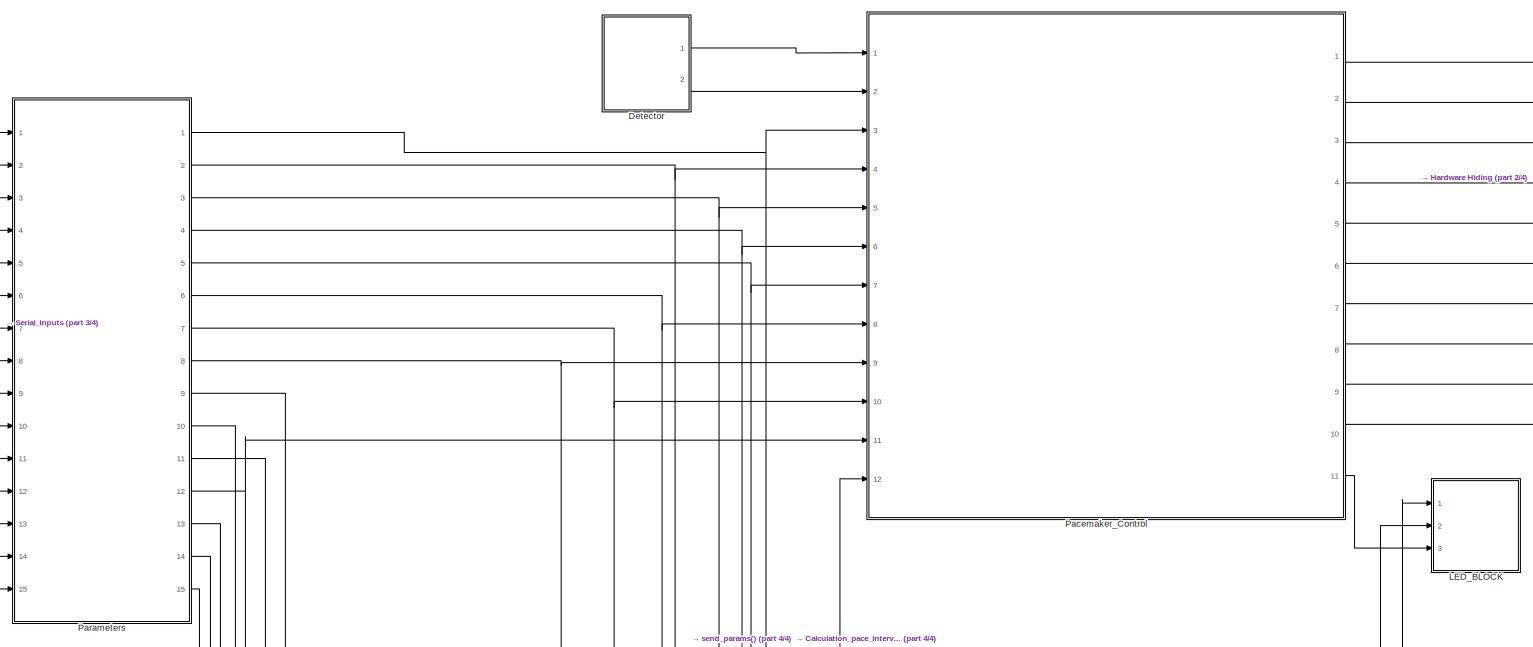
[diagram: root canvas - part 1/4, top center region]
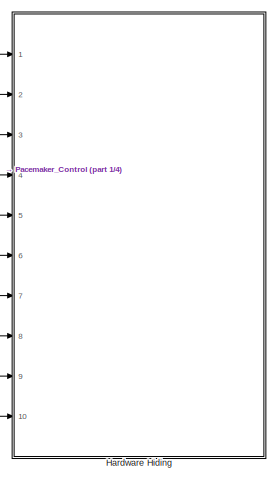
[diagram: root canvas - part 2/4, top right region]
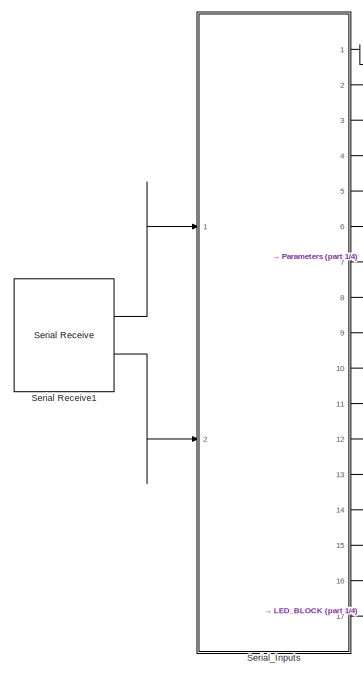
[diagram: root canvas - part 3/4, top left region]
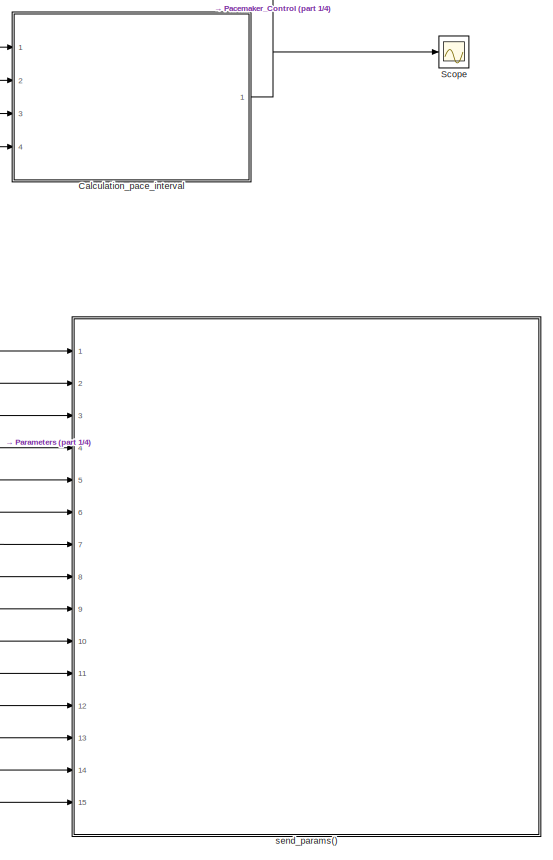
[diagram: root canvas - part 4/4, bottom right region]
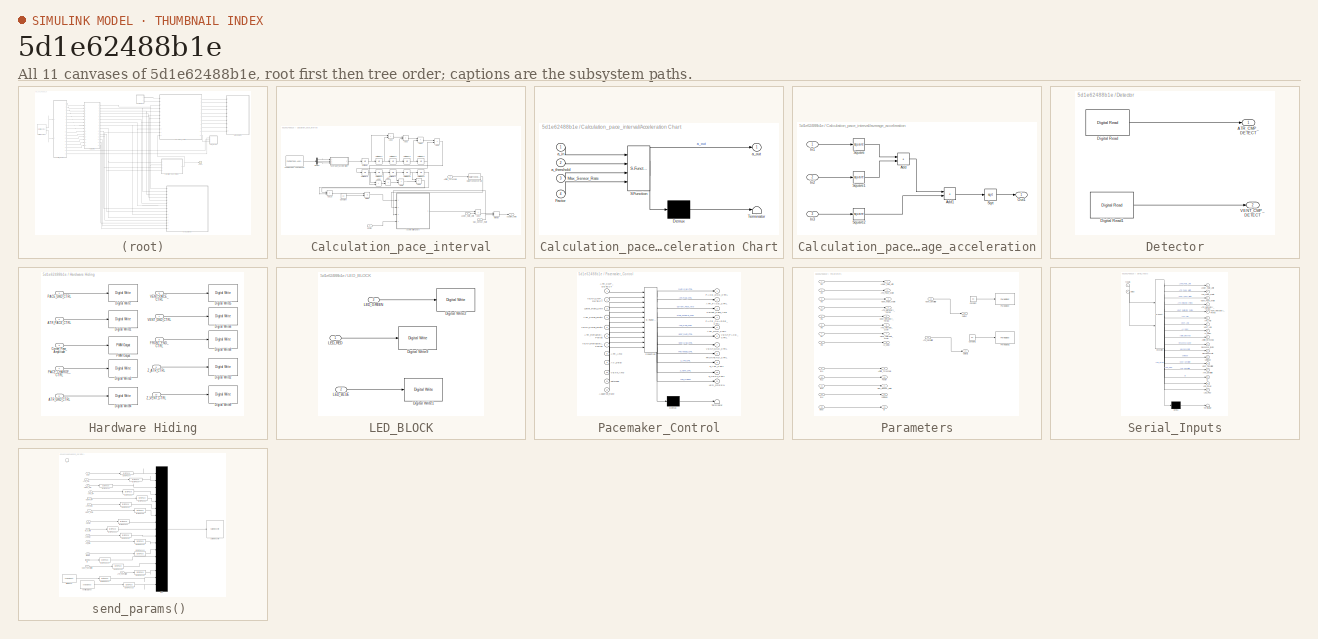
[diagram: thumbnail index - all 11 canvases of the model, root first then tree order]
MODEL slx_5d1e62488b1e
KIND model
CONFIG AbsTol = auto
CONFIG EnableMultiTasking = on
CONFIG FixedStep = 1e-3
CONFIG MaxStep = auto
CONFIG MinStep = auto
CONFIG RelTol = 1e-3
CONFIG SampleTimeConstraint = Unconstrained
CONFIG Solver = FixedStepAuto
CONFIG SolverName = FixedStepAuto
CONFIG StartTime = 0.0
CONFIG StopTime = inf
BLOCK [SubSystem] Calculation_pace_interval
  Ports = [4, 1]
  RequestExecContextInheritance = off
BLOCK [SubSystem] Calculation_pace_interval/Acceleration Chart
  ErrorFcn = Stateflow.Translate.translate
  PermitHierarchicalResolution = ExplicitOnly
  Ports = [4, 1]
  RequestExecContextInheritance = off
  SFBlockType = Chart
  TreatAsAtomicUnit = on
BLOCK [Demux] Calculation_pace_interval/Acceleration Chart/ Demux 
  Outputs = 1
  Ports = [1, 1]
BLOCK [S-Function] Calculation_pace_interval/Acceleration Chart/ SFunction 
  EnableBusSupport = on
  FunctionName = sf_sfun
  PortCounts = [4 2]
  Ports = [4, 2]
  SFcnIsStateOwnerBlock = off
  SFunctionDeploymentMode = off
  Tag = Stateflow S-Function 4
BLOCK [Terminator] Calculation_pace_interval/Acceleration Chart/ Terminator 
BLOCK [Inport] Calculation_pace_interval/Acceleration Chart/Factor
  Port = 4
BLOCK [Inport] Calculation_pace_interval/Acceleration Chart/Max_Sensor_Rate
  Port = 3
BLOCK [Inport] Calculation_pace_interval/Acceleration Chart/a_in
BLOCK [Outport] Calculation_pace_interval/Acceleration Chart/a_out
  VectorParamsAs1DForOutWhenUnconnected = off
BLOCK [Inport] Calculation_pace_interval/Acceleration Chart/a_threshold
  Port = 2
BLOCK [Inport] Calculation_pace_interval/Activity_Threshold
  OutDataTypeStr = uint16
BLOCK [Outport] Calculation_pace_interval/Adaptive_Rate
  OutDataTypeStr = uint16
  VectorParamsAs1DForOutWhenUnconnected = off
BLOCK [Sum] Calculation_pace_interval/Add1
  IconShape = rectangular
  Ports = [2, 1]
BLOCK [Sum] Calculation_pace_interval/Add10
  IconShape = rectangular
  Ports = [2, 1]
BLOCK [Sum] Calculation_pace_interval/Add2
  IconShape = rectangular
  Ports = [2, 1]
BLOCK [Sum] Calculation_pace_interval/Add3
  IconShape = rectangular
  Ports = [2, 1]
BLOCK [Sum] Calculation_pace_interval/Add4
  IconShape = rectangular
  Ports = [2, 1]
BLOCK [Sum] Calculation_pace_interval/Add5
  IconShape = rectangular
  Ports = [2, 1]
BLOCK [Sum] Calculation_pace_interval/Add6
  IconShape = rectangular
  Ports = [2, 1]
BLOCK [Sum] Calculation_pace_interval/Add7
  IconShape = rectangular
  Ports = [2, 1]
BLOCK [Sum] Calculation_pace_interval/Add8
  IconShape = rectangular
  Ports = [2, 1]
BLOCK [Sum] Calculation_pace_interval/Add9
  IconShape = rectangular
  Ports = [2, 1]
BLOCK [Constant] Calculation_pace_interval/Constant
  Value = 10
BLOCK [DataTypeConversion] Calculation_pace_interval/Data Type Conversion
  OutDataTypeStr = double
  RndMeth = Floor
  SaturateOnIntegerOverflow = off
BLOCK [Demux] Calculation_pace_interval/Demux
  Outputs = 3
  Ports = [1, 3]
BLOCK [Product] Calculation_pace_interval/Divide
  Inputs = */
  Ports = [2, 1]
BLOCK [Reference] Calculation_pace_interval/FXOS8700 6-Axes Sensor  REF=frdmk64flib/FXOS8700 6-Axes Sensor
  Ports = [0, 1]
  SourceBlock = frdmk64flib/FXOS8700 6-Axes Sensor
  SourceProductBaseCode = EC_FRDM_K64F
  SourceType = freedomk64f.fxos8700
BLOCK [Inport] Calculation_pace_interval/Factor
  OutDataTypeStr = uint16
  Port = 3
BLOCK [Inport] Calculation_pace_interval/Lower_Rate_Limit
  OutDataTypeStr = uint16
  Port = 2
BLOCK [Inport] Calculation_pace_interval/Max_Sensor_Rate
  OutDataTypeStr = uint16
  Port = 4
BLOCK [MinMax] Calculation_pace_interval/MinMax
  Inputs = 2
  Ports = [2, 1]
BLOCK [UnitDelay] Calculation_pace_interval/Unit Delay
  HasFrameUpgradeWarning = on
  SampleTime = -1
BLOCK [UnitDelay] Calculation_pace_interval/Unit Delay1
  HasFrameUpgradeWarning = on
  SampleTime = -1
BLOCK [UnitDelay] Calculation_pace_interval/Unit Delay2
  HasFrameUpgradeWarning = on
  SampleTime = -1
BLOCK [UnitDelay] Calculation_pace_interval/Unit Delay3
  HasFrameUpgradeWarning = on
  SampleTime = -1
BLOCK [UnitDelay] Calculation_pace_interval/Unit Delay4
  HasFrameUpgradeWarning = on
  SampleTime = -1
BLOCK [UnitDelay] Calculation_pace_interval/Unit Delay5
  HasFrameUpgradeWarning = on
  SampleTime = -1
BLOCK [UnitDelay] Calculation_pace_interval/Unit Delay6
  HasFrameUpgradeWarning = on
  SampleTime = -1
BLOCK [UnitDelay] Calculation_pace_interval/Unit Delay7
  HasFrameUpgradeWarning = on
  SampleTime = -1
BLOCK [UnitDelay] Calculation_pace_interval/Unit Delay8
  HasFrameUpgradeWarning = on
  SampleTime = -1
BLOCK [UnitDelay] Calculation_pace_interval/Unit Delay9
  HasFrameUpgradeWarning = on
  SampleTime = -1
BLOCK [SubSystem] Calculation_pace_interval/average_acceleration
  Ports = [3, 1]
  RequestExecContextInheritance = off
BLOCK [Sum] Calculation_pace_interval/average_acceleration/Add
  IconShape = rectangular
  Ports = [2, 1]
BLOCK [Sum] Calculation_pace_interval/average_acceleration/Add1
  IconShape = rectangular
  Ports = [2, 1]
BLOCK [Inport] Calculation_pace_interval/average_acceleration/In1
BLOCK [Inport] Calculation_pace_interval/average_acceleration/In2
  Port = 2
BLOCK [Inport] Calculation_pace_interval/average_acceleration/In3
  Port = 3
BLOCK [Outport] Calculation_pace_interval/average_acceleration/Out1
BLOCK [Sqrt] Calculation_pace_interval/average_acceleration/Sqrt
BLOCK [Math] Calculation_pace_interval/average_acceleration/Square
  Operator = square
  Ports = [1, 1]
  SignedPower = on
BLOCK [Math] Calculation_pace_interval/average_acceleration/Square1
  Operator = square
  Ports = [1, 1]
  SignedPower = on
BLOCK [Math] Calculation_pace_interval/average_acceleration/Square2
  Operator = square
  Ports = [1, 1]
  SignedPower = on
BLOCK [SubSystem] Detector
  Ports = [0, 2]
  RequestExecContextInheritance = off
BLOCK [Outport] Detector/ATR_CMP_DETECT
  IconDisplay = Signal name
  OutDataTypeStr = boolean
BLOCK [Reference] Detector/Digital Read  REF=frdmk64flib/Digital Read
  Ports = [0, 1]
  SourceBlock = frdmk64flib/Digital Read
  SourceProductBaseCode = EC_FRDM_K64F
  SourceType = freedomk64f.DigitalRead
BLOCK [Reference] Detector/Digital Read1  REF=frdmk64flib/Digital Read
  Ports = [0, 1]
  SourceBlock = frdmk64flib/Digital Read
  SourceProductBaseCode = EC_FRDM_K64F
  SourceType = freedomk64f.DigitalRead
BLOCK [Outport] Detector/VENT_CMP_DETECT
  OutDataTypeStr = boolean
  Port = 2
BLOCK [SubSystem] Hardware Hiding
  Ports = [10]
  RequestExecContextInheritance = off
BLOCK [Inport] Hardware Hiding/ATR_GND_CTRL
  OutDataTypeStr = boolean
  Port = 5
BLOCK [Inport] Hardware Hiding/ATR_PACE_CTRL
  OutDataTypeStr = boolean
  Port = 2
BLOCK [Inport] Hardware Hiding/Current_Pace_Amplitude
  OutDataTypeStr = uint16
  Port = 3
BLOCK [Reference] Hardware Hiding/Digital Write  REF=frdmk64flib/Digital Write
  Ports = [1]
  SourceBlock = frdmk64flib/Digital Write
  SourceProductBaseCode = EC_FRDM_K64F
  SourceType = freedomk64f.DigitalWrite
BLOCK [Reference] Hardware Hiding/Digital Write1  REF=frdmk64flib/Digital Write
  Ports = [1]
  SourceBlock = frdmk64flib/Digital Write
  SourceProductBaseCode = EC_FRDM_K64F
  SourceType = freedomk64f.DigitalWrite
BLOCK [Reference] Hardware Hiding/Digital Write2  REF=frdmk64flib/Digital Write
  Ports = [1]
  SourceBlock = frdmk64flib/Digital Write
  SourceProductBaseCode = EC_FRDM_K64F
  SourceType = freedomk64f.DigitalWrite
BLOCK [Reference] Hardware Hiding/Digital Write3  REF=frdmk64flib/Digital Write
  Ports = [1]
  SourceBlock = frdmk64flib/Digital Write
  SourceProductBaseCode = EC_FRDM_K64F
  SourceType = freedomk64f.DigitalWrite
BLOCK [Reference] Hardware Hiding/Digital Write4  REF=frdmk64flib/Digital Write
  Ports = [1]
  SourceBlock = frdmk64flib/Digital Write
  SourceProductBaseCode = EC_FRDM_K64F
  SourceType = freedomk64f.DigitalWrite
BLOCK [Reference] Hardware Hiding/Digital Write5  REF=frdmk64flib/Digital Write
  Ports = [1]
  SourceBlock = frdmk64flib/Digital Write
  SourceProductBaseCode = EC_FRDM_K64F
  SourceType = freedomk64f.DigitalWrite
BLOCK [Reference] Hardware Hiding/Digital Write6  REF=frdmk64flib/Digital Write
  Ports = [1]
  SourceBlock = frdmk64flib/Digital Write
  SourceProductBaseCode = EC_FRDM_K64F
  SourceType = freedomk64f.DigitalWrite
BLOCK [Reference] Hardware Hiding/Digital Write8  REF=frdmk64flib/Digital Write
  Ports = [1]
  SourceBlock = frdmk64flib/Digital Write
  SourceProductBaseCode = EC_FRDM_K64F
  SourceType = freedomk64f.DigitalWrite
BLOCK [Reference] Hardware Hiding/Digital Write9  REF=frdmk64flib/Digital Write
  Ports = [1]
  SourceBlock = frdmk64flib/Digital Write
  SourceProductBaseCode = EC_FRDM_K64F
  SourceType = freedomk64f.DigitalWrite
BLOCK [Inport] Hardware Hiding/FRONT_END_CTRL
  OutDataTypeStr = boolean
  Port = 8
BLOCK [Inport] Hardware Hiding/PACE_CHARGE_CTRL
  OutDataTypeStr = boolean
  Port = 4
BLOCK [Inport] Hardware Hiding/PACE_GND_CTRL
  OutDataTypeStr = boolean
BLOCK [Reference] Hardware Hiding/PWM Output  REF=frdmk64flib/PWM Output
  Ports = [1]
  SourceBlock = frdmk64flib/PWM Output
  SourceProductBaseCode = EC_FRDM_K64F
  SourceType = freedomk64f.PWMOutput
BLOCK [Inport] Hardware Hiding/VENT_GND_CTRL
  OutDataTypeStr = boolean
  Port = 7
BLOCK [Inport] Hardware Hiding/VENT_PACE_CTRL
  OutDataTypeStr = boolean
  Port = 6
BLOCK [Inport] Hardware Hiding/Z_ATR_CTRL
  OutDataTypeStr = boolean
  Port = 9
BLOCK [Inport] Hardware Hiding/Z_VENT_CTRL
  OutDataTypeStr = boolean
  Port = 10
BLOCK [SubSystem] LED_BLOCK
  Ports = [3]
  RequestExecContextInheritance = off
BLOCK [Reference] LED_BLOCK/Digital Write1  REF=frdmk64flib/Digital Write
  Ports = [1]
  SourceBlock = frdmk64flib/Digital Write
  SourceProductBaseCode = EC_FRDM_K64F
  SourceType = freedomk64f.DigitalWrite
BLOCK [Reference] LED_BLOCK/Digital Write2  REF=frdmk64flib/Digital Write
  Ports = [1]
  SourceBlock = frdmk64flib/Digital Write
  SourceProductBaseCode = EC_FRDM_K64F
  SourceType = freedomk64f.DigitalWrite
BLOCK [Reference] LED_BLOCK/Digital Write9  REF=frdmk64flib/Digital Write
  Ports = [1]
  SourceBlock = frdmk64flib/Digital Write
  SourceProductBaseCode = EC_FRDM_K64F
  SourceType = freedomk64f.DigitalWrite
BLOCK [Inport] LED_BLOCK/LED_BLUE
  OutDataTypeStr = boolean
  Port = 2
BLOCK [Inport] LED_BLOCK/LED_GREEN
  OutDataTypeStr = boolean
  Port = 3
BLOCK [Inport] LED_BLOCK/LED_RED
  OutDataTypeStr = boolean
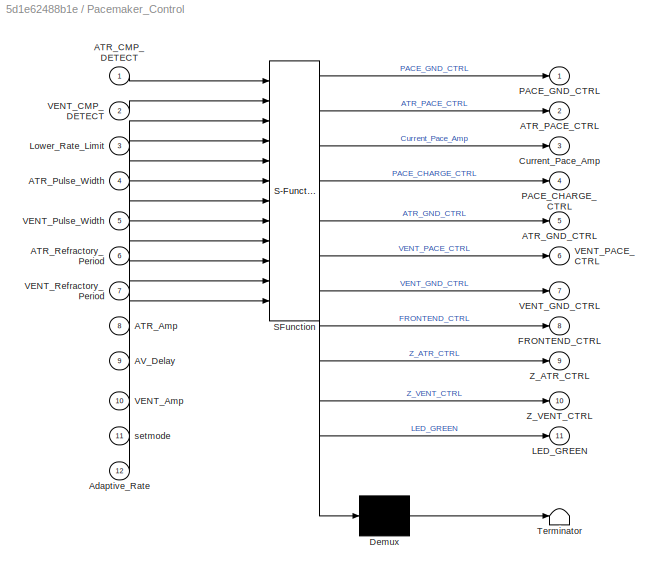
BLOCK [SubSystem] Pacemaker_Control
  ErrorFcn = Stateflow.Translate.translate
  PermitHierarchicalResolution = ExplicitOnly
  Ports = [12, 11]
  RequestExecContextInheritance = off
  SFBlockType = Chart
  ShowPortLabels = FromPortBlockName
  TreatAsAtomicUnit = on
BLOCK [Demux] Pacemaker_Control/ Demux 
  Outputs = 1
  Ports = [1, 1]
BLOCK [S-Function] Pacemaker_Control/ SFunction 
  EnableBusSupport = on
  FunctionName = sf_sfun
  PortCounts = [12 12]
  Ports = [12, 12]
  SFcnIsStateOwnerBlock = off
  SFunctionDeploymentMode = off
  Tag = Stateflow S-Function 5
BLOCK [Terminator] Pacemaker_Control/ Terminator 
BLOCK [Inport] Pacemaker_Control/ATR_Amp
  Port = 8
BLOCK [Inport] Pacemaker_Control/ATR_CMP_DETECT
BLOCK [Outport] Pacemaker_Control/ATR_GND_CTRL
  Port = 5
  VectorParamsAs1DForOutWhenUnconnected = off
BLOCK [Outport] Pacemaker_Control/ATR_PACE_CTRL
  Port = 2
  VectorParamsAs1DForOutWhenUnconnected = off
BLOCK [Inport] Pacemaker_Control/ATR_Pulse_Width
  Port = 4
BLOCK [Inport] Pacemaker_Control/ATR_Refractory_Period
  Port = 6
BLOCK [Inport] Pacemaker_Control/AV_Delay
  Port = 9
BLOCK [Inport] Pacemaker_Control/Adaptive_Rate
  Port = 12
BLOCK [Outport] Pacemaker_Control/Current_Pace_Amp
  Port = 3
BLOCK [Outport] Pacemaker_Control/FRONTEND_CTRL
  Port = 8
BLOCK [Outport] Pacemaker_Control/LED_GREEN
  Port = 11
BLOCK [Inport] Pacemaker_Control/Lower_Rate_Limit
  Port = 3
BLOCK [Outport] Pacemaker_Control/PACE_CHARGE_CTRL
  Port = 4
  VectorParamsAs1DForOutWhenUnconnected = off
BLOCK [Outport] Pacemaker_Control/PACE_GND_CTRL
  VectorParamsAs1DForOutWhenUnconnected = off
BLOCK [Inport] Pacemaker_Control/VENT_Amp
  Port = 10
BLOCK [Inport] Pacemaker_Control/VENT_CMP_DETECT
  Port = 2
BLOCK [Outport] Pacemaker_Control/VENT_GND_CTRL
  Port = 7
  VectorParamsAs1DForOutWhenUnconnected = off
BLOCK [Outport] Pacemaker_Control/VENT_PACE_CTRL
  Port = 6
  VectorParamsAs1DForOutWhenUnconnected = off
BLOCK [Inport] Pacemaker_Control/VENT_Pulse_Width
  Port = 5
BLOCK [Inport] Pacemaker_Control/VENT_Refractory_Period
  Port = 7
BLOCK [Outport] Pacemaker_Control/Z_ATR_CTRL
  Port = 9
BLOCK [Outport] Pacemaker_Control/Z_VENT_CTRL
  Port = 10
BLOCK [Inport] Pacemaker_Control/setmode
  Port = 11
BLOCK [SubSystem] Parameters
  Ports = [15, 15]
  RequestExecContextInheritance = off
BLOCK [Outport] Parameters/ATR_Amp(Duty_Cycle)
  IconDisplay = Port number and signal name
  OutDataTypeStr = uint16
  Port = 6
BLOCK [Outport] Parameters/ATR_Pulse_Width
  IconDisplay = Port number and signal name
  OutDataTypeStr = uint16
  Port = 2
BLOCK [Outport] Parameters/ATR_Refractory_Period
  IconDisplay = Port number and signal name
  OutDataTypeStr = uint16
  Port = 4
BLOCK [Inport] Parameters/ATR_Sensitivity
  Port = 14
BLOCK [Outport] Parameters/AV_Delay
  IconDisplay = Port number and signal name
  OutDataTypeStr = uint16
  Port = 8
BLOCK [Outport] Parameters/Activity_Threshold
  OutDataTypeStr = uint16
  Port = 9
BLOCK [Constant] Parameters/Constant
  Value = 83
BLOCK [Constant] Parameters/Constant1
  Value = 83
BLOCK [Outport] Parameters/Factor
  OutDataTypeStr = uint16
  Port = 10
BLOCK [Outport] Parameters/ID
  Port = 15
BLOCK [Inport] Parameters/In1
BLOCK [Inport] Parameters/In11
  Port = 9
BLOCK [Inport] Parameters/In12
  Port = 10
BLOCK [Inport] Parameters/In13
  Port = 11
BLOCK [Inport] Parameters/In14
  Port = 12
BLOCK [Inport] Parameters/In2
  Port = 2
BLOCK [Inport] Parameters/In3
  Port = 3
BLOCK [Inport] Parameters/In4
  Port = 4
BLOCK [Inport] Parameters/In5
  Port = 5
BLOCK [Inport] Parameters/In6
  Port = 6
BLOCK [Inport] Parameters/In7
  Port = 7
BLOCK [Inport] Parameters/In8
  Port = 8
BLOCK [Inport] Parameters/Input
  Port = 15
BLOCK [Outport] Parameters/Lower_Rate_Limit 
  IconDisplay = Signal name
  OutDataTypeStr = uint16
BLOCK [Outport] Parameters/Max_Sensor_Rate
  OutDataTypeStr = uint16
  Port = 11
BLOCK [Outport] Parameters/Output
  Port = 13
BLOCK [Outport] Parameters/Output1
  Port = 14
BLOCK [Reference] Parameters/PWM Output  REF=frdmk64flib/PWM Output
  Ports = [1]
  SourceBlock = frdmk64flib/PWM Output
  SourceProductBaseCode = EC_FRDM_K64F
  SourceType = freedomk64f.PWMOutput
BLOCK [Reference] Parameters/PWM Output1  REF=frdmk64flib/PWM Output
  Ports = [1]
  SourceBlock = frdmk64flib/PWM Output
  SourceProductBaseCode = EC_FRDM_K64F
  SourceType = freedomk64f.PWMOutput
BLOCK [Outport] Parameters/VENT_Amp(Duty_Cycle)
  IconDisplay = Port number and signal name
  OutDataTypeStr = uint16
  Port = 7
BLOCK [Outport] Parameters/VENT_Pulse_Width
  IconDisplay = Port number and signal name
  OutDataTypeStr = uint16
  Port = 3
BLOCK [Outport] Parameters/VENT_Refractory_Period
  IconDisplay = Port number and signal name
  OutDataTypeStr = uint16
  Port = 5
BLOCK [Inport] Parameters/VENT_Sensitivity
  Port = 13
BLOCK [Outport] Parameters/setmode 
  Port = 12
  VectorParamsAs1DForOutWhenUnconnected = off
BLOCK [Scope] Scope
  Floating = off
  NumInputPorts = 1
  Ports = [1]
  ScopeSpecificationString = Simulink.scopes.TimeScopeBlockCfg('CurrentConfiguration', extmgr.ConfigurationSet(extmgr.Configuration('Core','General UI',true),extmgr.Configuration('Core','Source UI',true),extmgr.Configuration('Sources','WiredSimulink',true),extmgr.Configuration('Visuals','Time Domain',true,'SerializedDisplays',{struct('MinYLimReal','-100','MaxYLimReal','100','YLabelReal','','MinYLimMag','0','MaxYLimMag','10','...<+1326ch>
BLOCK [Reference] Serial Receive1  REF=frdmk64flib/Serial Receive
  Ports = [0, 2]
  SourceBlock = frdmk64flib/Serial Receive
  SourceProductBaseCode = EC_FRDM_K64F
  SourceType = freedomk64f.SCIRead
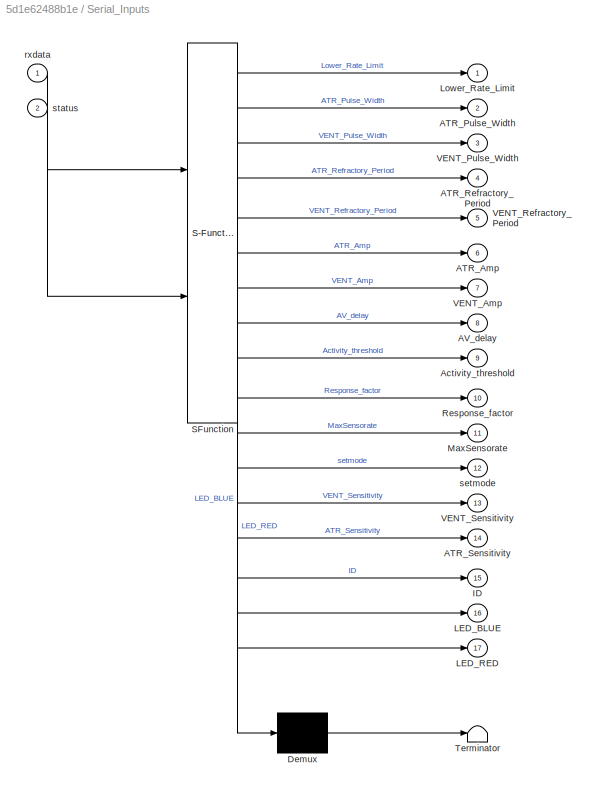
BLOCK [SubSystem] Serial_Inputs
  ErrorFcn = Stateflow.Translate.translate
  PermitHierarchicalResolution = ExplicitOnly
  Ports = [2, 17]
  RequestExecContextInheritance = off
  SFBlockType = Chart
  TreatAsAtomicUnit = on
BLOCK [Demux] Serial_Inputs/ Demux 
  Outputs = 1
  Ports = [1, 1]
BLOCK [S-Function] Serial_Inputs/ SFunction 
  EnableBusSupport = on
  FunctionName = sf_sfun
  PortCounts = [2 18]
  Ports = [2, 18]
  SFcnIsStateOwnerBlock = off
  SFunctionDeploymentMode = off
  Tag = Stateflow S-Function 6
BLOCK [Terminator] Serial_Inputs/ Terminator 
BLOCK [Outport] Serial_Inputs/ATR_Amp
  Port = 6
  VectorParamsAs1DForOutWhenUnconnected = off
BLOCK [Outport] Serial_Inputs/ATR_Pulse_Width
  Port = 2
  VectorParamsAs1DForOutWhenUnconnected = off
BLOCK [Outport] Serial_Inputs/ATR_Refractory_Period
  Port = 4
  VectorParamsAs1DForOutWhenUnconnected = off
BLOCK [Outport] Serial_Inputs/ATR_Sensitivity
  Port = 14
BLOCK [Outport] Serial_Inputs/AV_delay
  Port = 8
  VectorParamsAs1DForOutWhenUnconnected = off
BLOCK [Outport] Serial_Inputs/Activity_threshold
  Port = 9
  VectorParamsAs1DForOutWhenUnconnected = off
BLOCK [Outport] Serial_Inputs/ID
  Port = 15
BLOCK [Outport] Serial_Inputs/LED_BLUE
  Port = 16
BLOCK [Outport] Serial_Inputs/LED_RED
  Port = 17
BLOCK [Outport] Serial_Inputs/Lower_Rate_Limit
  VectorParamsAs1DForOutWhenUnconnected = off
BLOCK [Outport] Serial_Inputs/MaxSensorate
  Port = 11
  VectorParamsAs1DForOutWhenUnconnected = off
BLOCK [Outport] Serial_Inputs/Response_factor
  Port = 10
  VectorParamsAs1DForOutWhenUnconnected = off
BLOCK [Outport] Serial_Inputs/VENT_Amp
  Port = 7
  VectorParamsAs1DForOutWhenUnconnected = off
BLOCK [Outport] Serial_Inputs/VENT_Pulse_Width
  Port = 3
  VectorParamsAs1DForOutWhenUnconnected = off
BLOCK [Outport] Serial_Inputs/VENT_Refractory_Period
  Port = 5
  VectorParamsAs1DForOutWhenUnconnected = off
BLOCK [Outport] Serial_Inputs/VENT_Sensitivity
  Port = 13
BLOCK [Inport] Serial_Inputs/rxdata
BLOCK [Outport] Serial_Inputs/setmode
  Port = 12
BLOCK [Inport] Serial_Inputs/status
  Port = 2
BLOCK [SubSystem] send_params() 
  Ports = [15, 0, 0, 1]
  RequestExecContextInheritance = off
BLOCK [Inport] send_params() /ATR_PW
  OutDataTypeStr = uint16
  Port = 2
BLOCK [Inport] send_params() /ATR_RP
  OutDataTypeStr = uint16
  Port = 4
BLOCK [Inport] send_params() /ATR_Sensitivity
  OutDataTypeStr = double
  Port = 15
BLOCK [Inport] send_params() /ATR_amp
  OutDataTypeStr = uint16
  Port = 6
BLOCK [Inport] send_params() /AVdelay
  OutDataTypeStr = uint16
  Port = 10
BLOCK [Inport] send_params() /Acti_thre
  OutDataTypeStr = uint16
  Port = 11
BLOCK [Reference] send_params() /Atrial Signal  REF=frdmk64flib/Analog Input
  Ports = [0, 1]
  SourceBlock = frdmk64flib/Analog Input
  SourceProductBaseCode = EC_FRDM_K64F
  SourceType = freedomk64f.AnalogInput
BLOCK [Reference] send_params() /Byte Pack  REF=nucleoutilitieslib/Byte Pack
  Ports = [1, 1]
  SourceBlock = nucleoutilitieslib/Byte Pack
  SourceProductBaseCode = ARDUINO,ML_ARDUINO,ECCORTEXA,ECCORTEXR,SC_BEAGLEBONE_BLUE,EC_FREEDOM_BOARD,EC_FRDM_K64F,INTEL_BLOCKSET,MICROBIT,NUCLEO,PX4AUTOPILOTS,RASPPIIO,STMICRODIS,TIC2000,XILINX_BLOCKSET  <repeated x17 — deduplicated; at blocks: Byte Pack, Byte Pack1, Byte Pack10, Byte Pack11, Byte Pack12, Byte Pack13, Byte Pack14, Byte Pack15, Byte Pack16, Byte Pack17, Byte Pack18, Byte Pack2, Byte Pack3, Byte Pack4, Byte Pack5, Byte Pack6, +1 more>
  SourceType = Byte pack
BLOCK [Reference] send_params() /Byte Pack1  REF=nucleoutilitieslib/Byte Pack
  Ports = [1, 1]
  SourceBlock = nucleoutilitieslib/Byte Pack
  SourceType = Byte pack
BLOCK [Reference] send_params() /Byte Pack10  REF=nucleoutilitieslib/Byte Pack
  Ports = [1, 1]
  SourceBlock = nucleoutilitieslib/Byte Pack
  SourceType = Byte pack
BLOCK [Reference] send_params() /Byte Pack11  REF=nucleoutilitieslib/Byte Pack
  Ports = [1, 1]
  SourceBlock = nucleoutilitieslib/Byte Pack
  SourceType = Byte pack
BLOCK [Reference] send_params() /Byte Pack12  REF=nucleoutilitieslib/Byte Pack
  Ports = [1, 1]
  SourceBlock = nucleoutilitieslib/Byte Pack
  SourceType = Byte pack
BLOCK [Reference] send_params() /Byte Pack13  REF=nucleoutilitieslib/Byte Pack
  Ports = [1, 1]
  SourceBlock = nucleoutilitieslib/Byte Pack
  SourceType = Byte pack
BLOCK [Reference] send_params() /Byte Pack14  REF=nucleoutilitieslib/Byte Pack
  Ports = [1, 1]
  SourceBlock = nucleoutilitieslib/Byte Pack
  SourceType = Byte pack
BLOCK [Reference] send_params() /Byte Pack15  REF=nucleoutilitieslib/Byte Pack
  Ports = [1, 1]
  SourceBlock = nucleoutilitieslib/Byte Pack
  SourceType = Byte pack
BLOCK [Reference] send_params() /Byte Pack16  REF=nucleoutilitieslib/Byte Pack
  Ports = [1, 1]
  SourceBlock = nucleoutilitieslib/Byte Pack
  SourceType = Byte pack
BLOCK [Reference] send_params() /Byte Pack17  REF=nucleoutilitieslib/Byte Pack
  Ports = [1, 1]
  SourceBlock = nucleoutilitieslib/Byte Pack
  SourceType = Byte pack
BLOCK [Reference] send_params() /Byte Pack18  REF=nucleoutilitieslib/Byte Pack
  Ports = [1, 1]
  SourceBlock = nucleoutilitieslib/Byte Pack
  SourceType = Byte pack
BLOCK [Reference] send_params() /Byte Pack2  REF=nucleoutilitieslib/Byte Pack
  Ports = [1, 1]
  SourceBlock = nucleoutilitieslib/Byte Pack
  SourceType = Byte pack
BLOCK [Reference] send_params() /Byte Pack3  REF=nucleoutilitieslib/Byte Pack
  Ports = [1, 1]
  SourceBlock = nucleoutilitieslib/Byte Pack
  SourceType = Byte pack
BLOCK [Reference] send_params() /Byte Pack4  REF=nucleoutilitieslib/Byte Pack
  Ports = [1, 1]
  SourceBlock = nucleoutilitieslib/Byte Pack
  SourceType = Byte pack
BLOCK [Reference] send_params() /Byte Pack5  REF=nucleoutilitieslib/Byte Pack
  Ports = [1, 1]
  SourceBlock = nucleoutilitieslib/Byte Pack
  SourceType = Byte pack
BLOCK [Reference] send_params() /Byte Pack6  REF=nucleoutilitieslib/Byte Pack
  Ports = [1, 1]
  SourceBlock = nucleoutilitieslib/Byte Pack
  SourceType = Byte pack
BLOCK [Reference] send_params() /Byte Pack7  REF=nucleoutilitieslib/Byte Pack
  Ports = [1, 1]
  SourceBlock = nucleoutilitieslib/Byte Pack
  SourceType = Byte pack
BLOCK [Inport] send_params() /Factor
  OutDataTypeStr = uint16
  Port = 8
BLOCK [Inport] send_params() /ID
  OutDataTypeStr = uint16
  Port = 13
BLOCK [Inport] send_params() /LRL
  OutDataTypeStr = uint16
BLOCK [Inport] send_params() /M_S_rate
  OutDataTypeStr = uint16
  Port = 9
BLOCK [Mux] send_params() /Mux
  DisplayOption = bar
  Inputs = 17
  Ports = [17, 1]
BLOCK [Reference] send_params() /Serial Transmit  REF=frdmk64flib/Serial Transmit
  Ports = [1]
  SourceBlock = frdmk64flib/Serial Transmit
  SourceProductBaseCode = EC_FRDM_K64F
  SourceType = freedomk64f.SCIWrite
BLOCK [Inport] send_params() /VENT_PW
  OutDataTypeStr = uint16
  Port = 3
BLOCK [Inport] send_params() /VENT_RP
  OutDataTypeStr = uint16
  Port = 5
BLOCK [Inport] send_params() /VENT_Sensitivity
  OutDataTypeStr = double
  Port = 14
BLOCK [Inport] send_params() /VENT_amp
  OutDataTypeStr = uint16
  Port = 7
BLOCK [Reference] send_params() /Ventrical Signal  REF=frdmk64flib/Analog Input
  Ports = [0, 1]
  SourceBlock = frdmk64flib/Analog Input
  SourceProductBaseCode = EC_FRDM_K64F
  SourceType = freedomk64f.AnalogInput
BLOCK [TriggerPort] send_params() /f
  FunctionName = send_params
  IsSimulinkFunction = on
  Ports = []
  StatesWhenEnabling = held
  TriggerType = function-call
  VariantControl = (inherit)
BLOCK [Inport] send_params() /mode
  OutDataTypeStr = uint16
  Port = 12
LINE Calculation_pace_interval/Acceleration Chart:1 -> Calculation_pace_interval/Add1:1
LINE Calculation_pace_interval/Activity_Threshold:1 -> Calculation_pace_interval/Data Type Conversion:1
LINE Calculation_pace_interval/Add10:1 -> Calculation_pace_interval/Divide:1
LINE Calculation_pace_interval/Add1:1 -> Calculation_pace_interval/MinMax:1
LINE Calculation_pace_interval/Add2:1 -> Calculation_pace_interval/Add3:1
LINE Calculation_pace_interval/Add3:1 -> Calculation_pace_interval/Add4:1
LINE Calculation_pace_interval/Add4:1 -> Calculation_pace_interval/Add5:1
LINE Calculation_pace_interval/Add5:1 -> Calculation_pace_interval/Add6:2
LINE Calculation_pace_interval/Add6:1 -> Calculation_pace_interval/Add7:2
LINE Calculation_pace_interval/Add7:1 -> Calculation_pace_interval/Add8:2
LINE Calculation_pace_interval/Add8:1 -> Calculation_pace_interval/Add9:2
LINE Calculation_pace_interval/Add9:1 -> Calculation_pace_interval/Add10:1
LINE Calculation_pace_interval/Constant:1 -> Calculation_pace_interval/Divide:2
LINE Calculation_pace_interval/Data Type Conversion:1 -> Calculation_pace_interval/Acceleration Chart:2
LINE Calculation_pace_interval/Demux:1 -> Calculation_pace_interval/average_acceleration:1
LINE Calculation_pace_interval/Demux:2 -> Calculation_pace_interval/average_acceleration:2
LINE Calculation_pace_interval/Demux:3 -> Calculation_pace_interval/average_acceleration:3
LINE Calculation_pace_interval/Divide:1 -> Calculation_pace_interval/Acceleration Chart:1
LINE Calculation_pace_interval/FXOS8700 6-Axes Sensor:1 -> Calculation_pace_interval/Demux:1
LINE Calculation_pace_interval/Factor:1 -> Calculation_pace_interval/Acceleration Chart:4
LINE Calculation_pace_interval/Lower_Rate_Limit:1 -> Calculation_pace_interval/Add1:2
NET Calculation_pace_interval/Max_Sensor_Rate:1 -> Calculation_pace_interval/Acceleration Chart:3, Calculation_pace_interval/MinMax:2
LINE Calculation_pace_interval/MinMax:1 -> Calculation_pace_interval/Adaptive_Rate:1
NET Calculation_pace_interval/Unit Delay1:1 -> Calculation_pace_interval/Add2:2, Calculation_pace_interval/Unit Delay2:1
NET Calculation_pace_interval/Unit Delay2:1 -> Calculation_pace_interval/Add3:2, Calculation_pace_interval/Unit Delay3:1
NET Calculation_pace_interval/Unit Delay3:1 -> Calculation_pace_interval/Add4:2, Calculation_pace_interval/Unit Delay4:1
NET Calculation_pace_interval/Unit Delay4:1 -> Calculation_pace_interval/Add5:2, Calculation_pace_interval/Unit Delay5:1
NET Calculation_pace_interval/Unit Delay5:1 -> Calculation_pace_interval/Add6:1, Calculation_pace_interval/Unit Delay6:1
NET Calculation_pace_interval/Unit Delay6:1 -> Calculation_pace_interval/Add7:1, Calculation_pace_interval/Unit Delay7:1
NET Calculation_pace_interval/Unit Delay7:1 -> Calculation_pace_interval/Add8:1, Calculation_pace_interval/Unit Delay8:1
NET Calculation_pace_interval/Unit Delay8:1 -> Calculation_pace_interval/Add9:1, Calculation_pace_interval/Unit Delay9:1
LINE Calculation_pace_interval/Unit Delay9:1 -> Calculation_pace_interval/Add10:2
NET Calculation_pace_interval/Unit Delay:1 -> Calculation_pace_interval/Add2:1, Calculation_pace_interval/Unit Delay1:1
LINE Calculation_pace_interval/average_acceleration/Add1:1 -> Calculation_pace_interval/average_acceleration/Sqrt:1
LINE Calculation_pace_interval/average_acceleration/Add:1 -> Calculation_pace_interval/average_acceleration/Add1:1
LINE Calculation_pace_interval/average_acceleration/In1:1 -> Calculation_pace_interval/average_acceleration/Square:1
LINE Calculation_pace_interval/average_acceleration/In2:1 -> Calculation_pace_interval/average_acceleration/Square1:1
LINE Calculation_pace_interval/average_acceleration/In3:1 -> Calculation_pace_interval/average_acceleration/Square2:1
LINE Calculation_pace_interval/average_acceleration/Sqrt:1 -> Calculation_pace_interval/average_acceleration/Out1:1
LINE Calculation_pace_interval/average_acceleration/Square1:1 -> Calculation_pace_interval/average_acceleration/Add:2
LINE Calculation_pace_interval/average_acceleration/Square2:1 -> Calculation_pace_interval/average_acceleration/Add1:2
LINE Calculation_pace_interval/average_acceleration/Square:1 -> Calculation_pace_interval/average_acceleration/Add:1
LINE Calculation_pace_interval/average_acceleration:1 -> Calculation_pace_interval/Unit Delay:1
NET Calculation_pace_interval:1 -> Pacemaker_Control:12, Scope:1
LINE Detector/Digital Read1:1 -> Detector/VENT_CMP_DETECT:1
LINE Detector/Digital Read:1 -> Detector/ATR_CMP_DETECT:1
LINE Detector:1 -> Pacemaker_Control:1
LINE Detector:2 -> Pacemaker_Control:2
LINE Hardware Hiding/ATR_GND_CTRL:1 -> Hardware Hiding/Digital Write4:1
LINE Hardware Hiding/ATR_PACE_CTRL:1 -> Hardware Hiding/Digital Write1:1
LINE Hardware Hiding/Current_Pace_Amplitude:1 -> Hardware Hiding/PWM Output:1
LINE Hardware Hiding/FRONT_END_CTRL:1 -> Hardware Hiding/Digital Write8:1
LINE Hardware Hiding/PACE_CHARGE_CTRL:1 -> Hardware Hiding/Digital Write3:1
LINE Hardware Hiding/PACE_GND_CTRL:1 -> Hardware Hiding/Digital Write:1
LINE Hardware Hiding/VENT_GND_CTRL:1 -> Hardware Hiding/Digital Write6:1
LINE Hardware Hiding/VENT_PACE_CTRL:1 -> Hardware Hiding/Digital Write5:1
LINE Hardware Hiding/Z_ATR_CTRL:1 -> Hardware Hiding/Digital Write2:1
LINE Hardware Hiding/Z_VENT_CTRL:1 -> Hardware Hiding/Digital Write9:1
LINE LED_BLOCK/LED_BLUE:1 -> LED_BLOCK/Digital Write1:1
LINE LED_BLOCK/LED_GREEN:1 -> LED_BLOCK/Digital Write2:1
LINE LED_BLOCK/LED_RED:1 -> LED_BLOCK/Digital Write9:1
LINE Pacemaker_Control:1 -> Hardware Hiding:1
LINE Pacemaker_Control:10 -> Hardware Hiding:10
LINE Pacemaker_Control:11 -> LED_BLOCK:3
LINE Pacemaker_Control:2 -> Hardware Hiding:2
LINE Pacemaker_Control:3 -> Hardware Hiding:3
LINE Pacemaker_Control:4 -> Hardware Hiding:4
LINE Pacemaker_Control:5 -> Hardware Hiding:5
LINE Pacemaker_Control:6 -> Hardware Hiding:6
LINE Pacemaker_Control:7 -> Hardware Hiding:7
LINE Pacemaker_Control:8 -> Hardware Hiding:8
LINE Pacemaker_Control:9 -> Hardware Hiding:9
LINE Parameters/ATR_Sensitivity:1 -> Parameters/Output1:1
LINE Parameters/Constant1:1 -> Parameters/PWM Output1:1
LINE Parameters/Constant:1 -> Parameters/PWM Output:1
LINE Parameters/In11:1 -> Parameters/Activity_Threshold:1
LINE Parameters/In12:1 -> Parameters/Factor:1
LINE Parameters/In13:1 -> Parameters/Max_Sensor_Rate:1
LINE Parameters/In14:1 -> Parameters/setmode :1
LINE Parameters/In1:1 -> Parameters/Lower_Rate_Limit :1
LINE Parameters/In2:1 -> Parameters/ATR_Pulse_Width:1
LINE Parameters/In3:1 -> Parameters/VENT_Pulse_Width:1
LINE Parameters/In4:1 -> Parameters/ATR_Refractory_Period:1
LINE Parameters/In5:1 -> Parameters/VENT_Refractory_Period:1
LINE Parameters/In6:1 -> Parameters/ATR_Amp(Duty_Cycle):1
LINE Parameters/In7:1 -> Parameters/VENT_Amp(Duty_Cycle):1
LINE Parameters/In8:1 -> Parameters/AV_Delay:1
LINE Parameters/Input:1 -> Parameters/ID:1
LINE Parameters/VENT_Sensitivity:1 -> Parameters/Output:1
NET Parameters:1 -> Calculation_pace_interval:2, Pacemaker_Control:3, send_params() :1
NET Parameters:10 -> Calculation_pace_interval:3, send_params() :8
NET Parameters:11 -> Calculation_pace_interval:4, send_params() :9
NET Parameters:12 -> Pacemaker_Control:11, send_params() :12
LINE Parameters:13 -> send_params() :14
LINE Parameters:14 -> send_params() :15
LINE Parameters:15 -> send_params() :13
NET Parameters:2 -> Pacemaker_Control:4, send_params() :2
NET Parameters:3 -> Pacemaker_Control:5, send_params() :3
NET Parameters:4 -> Pacemaker_Control:6, send_params() :4
NET Parameters:5 -> Pacemaker_Control:7, send_params() :5
NET Parameters:6 -> Pacemaker_Control:8, send_params() :6
NET Parameters:7 -> Pacemaker_Control:10, send_params() :7
NET Parameters:8 -> Pacemaker_Control:9, send_params() :10
NET Parameters:9 -> Calculation_pace_interval:1, send_params() :11
LINE Serial Receive1:1 -> Serial_Inputs:1
LINE Serial Receive1:2 -> Serial_Inputs:2
LINE Serial_Inputs:1 -> Parameters:1
LINE Serial_Inputs:10 -> Parameters:10
LINE Serial_Inputs:11 -> Parameters:11
LINE Serial_Inputs:12 -> Parameters:12
LINE Serial_Inputs:13 -> Parameters:13
LINE Serial_Inputs:14 -> Parameters:14
LINE Serial_Inputs:15 -> Parameters:15
LINE Serial_Inputs:16 -> LED_BLOCK:2
LINE Serial_Inputs:17 -> LED_BLOCK:1
LINE Serial_Inputs:2 -> Parameters:2
LINE Serial_Inputs:3 -> Parameters:3
LINE Serial_Inputs:4 -> Parameters:4
LINE Serial_Inputs:5 -> Parameters:5
LINE Serial_Inputs:6 -> Parameters:6
LINE Serial_Inputs:7 -> Parameters:7
LINE Serial_Inputs:8 -> Parameters:8
LINE Serial_Inputs:9 -> Parameters:9
LINE send_params() /ATR_PW:1 -> send_params() /Byte Pack:1
LINE send_params() /ATR_RP:1 -> send_params() /Byte Pack2:1
LINE send_params() /ATR_Sensitivity:1 -> send_params() /Byte Pack16:1
LINE send_params() /ATR_amp:1 -> send_params() /Byte Pack4:1
LINE send_params() /AVdelay:1 -> send_params() /Byte Pack6:1
LINE send_params() /Acti_thre:1 -> send_params() /Byte Pack10:1
LINE send_params() /Atrial Signal:1 -> send_params() /Byte Pack17:1
LINE send_params() /Byte Pack10:1 -> send_params() /Mux:11
LINE send_params() /Byte Pack11:1 -> send_params() /Mux:8
LINE send_params() /Byte Pack12:1 -> send_params() /Mux:9
LINE send_params() /Byte Pack13:1 -> send_params() /Mux:12
LINE send_params() /Byte Pack14:1 -> send_params() /Mux:13
LINE send_params() /Byte Pack15:1 -> send_params() /Mux:14
LINE send_params() /Byte Pack16:1 -> send_params() /Mux:15
LINE send_params() /Byte Pack17:1 -> send_params() /Mux:16
LINE send_params() /Byte Pack18:1 -> send_params() /Mux:17
LINE send_params() /Byte Pack1:1 -> send_params() /Mux:3
LINE send_params() /Byte Pack2:1 -> send_params() /Mux:4
LINE send_params() /Byte Pack3:1 -> send_params() /Mux:5
LINE send_params() /Byte Pack4:1 -> send_params() /Mux:6
LINE send_params() /Byte Pack5:1 -> send_params() /Mux:7
LINE send_params() /Byte Pack6:1 -> send_params() /Mux:10
LINE send_params() /Byte Pack7:1 -> send_params() /Mux:1
LINE send_params() /Byte Pack:1 -> send_params() /Mux:2
LINE send_params() /Factor:1 -> send_params() /Byte Pack11:1
LINE send_params() /ID:1 -> send_params() /Byte Pack14:1
LINE send_params() /LRL:1 -> send_params() /Byte Pack7:1
LINE send_params() /M_S_rate:1 -> send_params() /Byte Pack12:1
LINE send_params() /Mux:1 -> send_params() /Serial Transmit:1
LINE send_params() /VENT_PW:1 -> send_params() /Byte Pack1:1
LINE send_params() /VENT_RP:1 -> send_params() /Byte Pack3:1
LINE send_params() /VENT_Sensitivity:1 -> send_params() /Byte Pack15:1
LINE send_params() /VENT_amp:1 -> send_params() /Byte Pack5:1
LINE send_params() /Ventrical Signal:1 -> send_params() /Byte Pack18:1
LINE send_params() /mode:1 -> send_params() /Byte Pack13:1
note: NET lines group one-source signal fan-out (src -> all destinations, sorted); 1:1 wires keep LINE
CHART Calculation_pace_interval/Acceleration Chart states=7 transitions=14
  STATE_LABEL 'LOW_TO_MID\nentry:\nif(a_out+Factor<=Max_Sensor_Rate/2)\n    a_out = a_out + Factor;\nend\n'
  STATE_LABEL 'MID\nentry:\n%LED_BLUE = true;'
  STATE_LABEL 'LOW\nentry:\na_out = 0;\n%LED_RED = true;'
  STATE_LABEL 'MID_TO_HIGH\nentry:\nif(a_out+Factor <=Max_Sensor_Rate)\n    a_out = a_out+Factor;\nend'
  STATE_LABEL 'LOW_TO_HIGH\nentry:\nif(a_out+Factor+Factor <=Max_Sensor_Rate)\n    a_out = a_out+Factor+Factor;\nend'
  STATE_LABEL 'HIGH_TO_MID\nentry:\na_out = a_out-Factor;'
  STATE_LABEL 'HIGH\nentry:\n%LED_BLUE = true;'
CHART Pacemaker_Control states=46 transitions=69
  STATE_LABEL 'AOO\nentry:\nPACE_CHARGE_CTRL=false;\nVENT_PACE_CTRL=false;\nPACE_CHARGE_CTRL=true;\nPACE_GND_CTRL=true;\nVENT_PACE_CTRL=false;\nZ_ATR_CTRL=false;\nZ_VENT_CTRL=false;\nATR_PACE_CTRL=false;\nATR_GND_CTRL=true;\nVENT_GND_CTRL=false;\n%LED_GREEN=false;\n'
  STATE_LABEL 'AOO_PACE\nentry:\nPACE_CHARGE_CTRL=false;\nPACE_GND_CTRL=true;\nATR_PACE_CTRL=true;\nATR_GND_CTRL=false;\nZ_ATR_CTRL=false;\nZ_VENT_CTRL=false;\nVENT_GND_CTRL=false;\nVENT_PACE_CTRL=false;\n%LED_GREEN=true;\nCurrent_Pace_Amp=ATR_Amp;\n'
  STATE_LABEL 'AOOR\nentry:\nPACE_CHARGE_CTRL=false;\nVENT_PACE_CTRL=false;\nPACE_CHARGE_CTRL=true;\nPACE_GND_CTRL=true;\nVENT_PACE_CTRL=false;\nZ_ATR_CTRL=false;\nZ_VENT_CTRL=false;\nATR_PACE_CTRL=false;\nATR_GND_CTRL=true;\nVENT_GND_CTRL=false;\nLED_GREEN=false;'
  STATE_LABEL 'pacing_AOOR\nentry:\nPACE_CHARGE_CTRL=false;\nPACE_GND_CTRL=true;\nATR_PACE_CTRL=true;\nATR_GND_CTRL=false;\nZ_ATR_CTRL=false;\nZ_VENT_CTRL=false;\nVENT_GND_CTRL=false;\nVENT_PACE_CTRL=false;\nLED_GREEN=true;\nCurrent_Pace_Amp=ATR_Amp;'
  STATE_LABEL 'VOO_PACE\nentry:\nPACE_CHARGE_CTRL=false;\nPACE_GND_CTRL=true;\nATR_PACE_CTRL=false;\nATR_GND_CTRL=false;\nZ_ATR_CTRL=false;\nZ_VENT_CTRL=false;\nVENT_GND_CTRL=false;\nVENT_PACE_CTRL=true;\n%LED_GREEN=true;\nCurrent_Pace_Amp = VENT_Amp;'
  STATE_LABEL 'VOO\nentry:\nPACE_CHARGE_CTRL=false;\nVENT_PACE_CTRL=false;\nPACE_CHARGE_CTRL=true;\nPACE_GND_CTRL=true;\nVENT_PACE_CTRL=false;\nZ_ATR_CTRL=false;\nZ_VENT_CTRL=false;\nATR_PACE_CTRL=false;\nATR_GND_CTRL=false;\nVENT_GND_CTRL=true;\n%LED_GREEN=false;'
  STATE_LABEL 'VOOR\nentry:\nPACE_CHARGE_CTRL=false;\nVENT_PACE_CTRL=false;\nPACE_CHARGE_CTRL=true;\nPACE_GND_CTRL=true;\nVENT_PACE_CTRL=false;\nZ_ATR_CTRL=false;\nZ_VENT_CTRL=false;\nATR_PACE_CTRL=false;\nATR_GND_CTRL=false;\nVENT_GND_CTRL=true;\nLED_GREEN=false;\n'
  STATE_LABEL 'pacing_VOOR\nentry:\nPACE_CHARGE_CTRL=false;\nPACE_GND_CTRL=true;\nATR_PACE_CTRL=false;\nATR_GND_CTRL=false;\nZ_ATR_CTRL=false;\nZ_VENT_CTRL=false;\nVENT_GND_CTRL=false;\nVENT_PACE_CTRL=true;\nLED_GREEN=true;\nCurrent_Pace_Amp = VENT_Amp;\n'
  STATE_LABEL 'AAI_PACE\nentry:\nFRONTEND_CTRL=false;\nPACE_CHARGE_CTRL=false;\nPACE_GND_CTRL=true;\nATR_PACE_CTRL=true;\nATR_GND_CTRL=false;\nZ_ATR_CTRL=false;\nZ_VENT_CTRL=false;\nVENT_GND_CTRL=false;\nVENT_PACE_CTRL=false;\n%LED_GREEN=true;\nCurrent_Pace_Amp=ATR_Amp;'
  STATE_LABEL 'AAI\nentry:\nFRONTEND_CTRL=false;\nPACE_CHARGE_CTRL=false;\nVENT_PACE_CTRL=false;\nPACE_CHARGE_CTRL=true;\nPACE_GND_CTRL=true;\nVENT_PACE_CTRL=false;\nZ_ATR_CTRL=false;\nZ_VENT_CTRL=false;\nATR_PACE_CTRL=false;\nATR_GND_CTRL=true;\nVENT_GND_CTRL=false;\n%LED_GREEN=false;'
  STATE_LABEL 'AAI_REF_PERIOD1\nentry:\nFRONTEND_CTRL=true;\nPACE_CHARGE_CTRL=true;\nPACE_GND_CTRL=true;\nATR_PACE_CTRL=false;\nATR_GND_CTRL=true;\nZ_ATR_CTRL=false;\nZ_VENT_CTRL=false;\nVENT_GND_CTRL=false;\nVENT_PACE_CTRL=false;\n%LED_GREEN=true;\nCurrent_Pace_Amp=ATR_Amp;'
  STATE_LABEL 'pacing_AAIR\nentry:\nFRONTEND_CTRL=false;\nPACE_CHARGE_CTRL=false;\nPACE_GND_CTRL=true;\nATR_PACE_CTRL=true;\nATR_GND_CTRL=false;\nZ_ATR_CTRL=false;\nZ_VENT_CTRL=false;\nVENT_GND_CTRL=false;\nVENT_PACE_CTRL=false;\n%LED_GREEN=true;\nCurrent_Pace_Amp=ATR_Amp;\n'
  STATE_LABEL 'AAIR\nentry:\nFRONTEND_CTRL=false;\nPACE_CHARGE_CTRL=false;\nVENT_PACE_CTRL=false;\nPACE_CHARGE_CTRL=true;\nPACE_GND_CTRL=true;\nVENT_PACE_CTRL=false;\nZ_ATR_CTRL=false;\nZ_VENT_CTRL=false;\nATR_PACE_CTRL=false;\nATR_GND_CTRL=true;\nVENT_GND_CTRL=false;\n%LED_GREEN=false;\n'
  STATE_LABEL 'AAI_REF_LED1\nentry:\n%LED_GREEN=false;'
  STATE_LABEL 'AAIR_LED1\nentry:\n%LED_GREEN=false;'
  STATE_LABEL 'AAI_REF_PERIOD\nentry:\nFRONTEND_CTRL=true;\nPACE_CHARGE_CTRL=true;\nPACE_GND_CTRL=true;\nATR_PACE_CTRL=false;\nATR_GND_CTRL=true;\nZ_ATR_CTRL=false;\nZ_VENT_CTRL=false;\nVENT_GND_CTRL=false;\nVENT_PACE_CTRL=false;\n%LED_GREEN=true;\nCurrent_Pace_Amp=ATR_Amp;'
  STATE_LABEL 'Refractory_AAIR1\nentry:\nFRONTEND_CTRL=true;\nPACE_CHARGE_CTRL=true;\nPACE_GND_CTRL=true;\nATR_PACE_CTRL=false;\nATR_GND_CTRL=true;\nZ_ATR_CTRL=false;\nZ_VENT_CTRL=false;\nVENT_GND_CTRL=false;\nVENT_PACE_CTRL=false;\n%LED_GREEN=true;\nCurrent_Pace_Amp=ATR_Amp'
  STATE_LABEL 'AAI_REF_LED\nentry:\n%LED_GREEN=false;'
  STATE_LABEL 'MAIN\nentry:\n%stop sensing\nFRONTEND_CTRL=false;\nCurrent_Pace_Amp=0;'
  STATE_LABEL 'VVI\nentry:\nFRONTEND_CTRL=false;\nPACE_CHARGE_CTRL=false;\nVENT_PACE_CTRL=false;\nPACE_CHARGE_CTRL=true;\nPACE_GND_CTRL=true;\nVENT_PACE_CTRL=false;\nZ_ATR_CTRL=false;\nZ_VENT_CTRL=false;\nATR_PACE_CTRL=false;\nATR_GND_CTRL=false;\nVENT_GND_CTRL=true;\nLED_GREEN=false;'
  STATE_LABEL 'Refractory_AAIR\nentry:\nFRONTEND_CTRL=true;\nPACE_CHARGE_CTRL=true;\nPACE_GND_CTRL=true;\nATR_PACE_CTRL=false;\nATR_GND_CTRL=true;\nZ_ATR_CTRL=false;\nZ_VENT_CTRL=false;\nVENT_GND_CTRL=false;\nVENT_PACE_CTRL=false;\n%LED_GREEN=true;\nCurrent_Pace_Amp=ATR_Amp'
  STATE_LABEL 'VVI_PACE\nentry:\nFRONTEND_CTRL=false;\nPACE_CHARGE_CTRL=false;\nPACE_GND_CTRL=true;\nATR_PACE_CTRL=false;\nATR_GND_CTRL=false;\nZ_ATR_CTRL=false;\nZ_VENT_CTRL=false;\nVENT_GND_CTRL=false;\nVENT_PACE_CTRL=true;\nLED_GREEN=true;\nCurrent_Pace_Amp = VENT_Amp;'
  STATE_LABEL '<!DOCTYPE HTML PUBLIC "-//W3C//DTD HTML 4.0//EN" "http://www.w3.org/TR/REC-html40/strict.dtd">\n<html><head><meta name="qrichtext" content="1" /><style type="text/css">\np, li { white-space: pre-wrap; }\n</style></head><body align="left" style=" font-family:\'Helvetica\'; font-size:12px; font-weight:400; font-style:normal;">\n<table border="1" style=" border-color:#000000; border-style:solid; margin-top...<+4397ch>'
  STATE_LABEL 'AAIR_LED\nentry:\n%LED_GREEN=false;'
  STATE_LABEL 'VVIR\nentry:\nFRONTEND_CTRL=false;\nPACE_CHARGE_CTRL=false;\nVENT_PACE_CTRL=false;\nPACE_CHARGE_CTRL=true;\nPACE_GND_CTRL=true;\nVENT_PACE_CTRL=false;\nZ_ATR_CTRL=false;\nZ_VENT_CTRL=false;\nATR_PACE_CTRL=false;\nATR_GND_CTRL=false;\nVENT_GND_CTRL=true;\n%LED_GREEN=false;\n'
  STATE_LABEL 'pacing_VVIR\nentry:\nFRONTEND_CTRL=false;\nPACE_CHARGE_CTRL=false;\nPACE_GND_CTRL=true;\nATR_PACE_CTRL=false;\nATR_GND_CTRL=false;\nZ_ATR_CTRL=false;\nZ_VENT_CTRL=false;\nVENT_GND_CTRL=false;\nVENT_PACE_CTRL=true;\n%LED_GREEN=true;\nCurrent_Pace_Amp = VENT_Amp;'
  STATE_LABEL 'VVI_REF_PERIOD2\nentry:\nFRONTEND_CTRL=true;\nPACE_CHARGE_CTRL=true;\nPACE_GND_CTRL=true;\nATR_PACE_CTRL=false;\nATR_GND_CTRL=false;\nZ_ATR_CTRL=false;\nZ_VENT_CTRL=false;\nVENT_GND_CTRL=true;\nVENT_PACE_CTRL=false;\nCurrent_Pace_Amp = VENT_Amp;\nLED_GREEN=false;'
  STATE_LABEL 'VVIR_REF_PERIOD2\n%LED_GREEN=false;'
  STATE_LABEL 'VVI_LED1\nentry:\nLED_GREEN=true;'
  STATE_LABEL 'VVI_REF_PERIOD1\nentry:\nFRONTEND_CTRL=true;\nPACE_CHARGE_CTRL=true;\nPACE_GND_CTRL=true;\nATR_PACE_CTRL=false;\nATR_GND_CTRL=false;\nZ_ATR_CTRL=false;\nZ_VENT_CTRL=false;\nVENT_GND_CTRL=true;\nVENT_PACE_CTRL=false;\nCurrent_Pace_Amp = VENT_Amp;\nLED_GREEN=false;'
  STATE_LABEL 'Refractory_VVIR1\nentry:\nFRONTEND_CTRL=true;\nPACE_CHARGE_CTRL=true;\nPACE_GND_CTRL=true;\nATR_PACE_CTRL=false;\nATR_GND_CTRL=false;\nZ_ATR_CTRL=false;\nZ_VENT_CTRL=false;\nVENT_GND_CTRL=true;\nVENT_PACE_CTRL=false;\n%LED_GREEN=true;\nCurrent_Pace_Amp = VENT_Amp;'
  STATE_LABEL 'Refractory_VVIR\nentry:\nFRONTEND_CTRL=true;\nPACE_CHARGE_CTRL=true;\nPACE_GND_CTRL=true;\nATR_PACE_CTRL=false;\nATR_GND_CTRL=false;\nZ_ATR_CTRL=false;\nZ_VENT_CTRL=false;\nVENT_GND_CTRL=true;\nVENT_PACE_CTRL=false;\n%LED_GREEN=true;\nCurrent_Pace_Amp = VENT_Amp;'
  STATE_LABEL 'VVI_LED\nentry:\nLED_GREEN=true;'
  STATE_LABEL 'Discharge C22 to C21 to pace ATR'
  STATE_LABEL 'pacing_DOO_ATR\nentry:\n%discharge C22 and charge C21\nPACE_CHARGE_CTRL=false;%disconnect 4\n%connect C22 and C21\nATR_GND_CTRL = false;\nVENT_GND_CTRL=false;%disconnect 7\nVENT_PACE_CTRL=false;\nATR_PACE_CTRL=true;%connect 6 for ATR\nPACE_GND_CTRL=true;\nCurrent_Pace_Amp = ATR_Amp;\n%LED_RED=false;'
  STATE_LABEL 'VVIR_REF_PERIOD1\n%LED_GREEN=false;'
  STATE_LABEL 'Charge C22, discharge C21 for VENT'
  STATE_LABEL 'DOO\nentry:\nFRONTEND_CTRL=false;\nVENT_PACE_CTRL=false %turn off VENT\nATR_PACE_CTRL=false;%disconnect 6\n%discharge C21 for VENT\nVENT_GND_CTRL=true;\nPACE_GND_CTRL=true;%connect 10\nATR_GND_CTRL=false;\n%charge C22\nPACE_CHARGE_CTRL=true;%connect 4\n%set the atrium pacing amplitude\nCurrent_Pace_Amp = ATR_Amp;\n%LED_RED=true;%use red LED for debugging\n%LED_GREEN=false;'
  STATE_LABEL 'pacing_DOOR_ATR\nentry:\n%discharge C22 and charge C21\nPACE_CHARGE_CTRL=false;%disconnect 4\n%connect C22 and C21\nATR_GND_CTRL = false;\nVENT_GND_CTRL=false;%disconnect 7\nVENT_PACE_CTRL=false;\nATR_PACE_CTRL=true;%connect 6 for ATR\nPACE_GND_CTRL=true;\nCurrent_Pace_Amp = ATR_Amp;\n%LED_RED=false;'
  STATE_LABEL 'DOOR\nentry:\nFRONTEND_CTRL=false;\nVENT_PACE_CTRL=false; %turn off VENT\nATR_PACE_CTRL=false;%disconnect 6\n%discharge C21 for VENT\nVENT_GND_CTRL=true;\nPACE_GND_CTRL=true;%connect 10\nATR_GND_CTRL=false;\n%charge C22\nPACE_CHARGE_CTRL=true;%connect 4\n%set the atrium pacing amplitude\nCurrent_Pace_Amp = ATR_Amp;\n%LED_RED=true;%use red LED for debugging\n'
CHART Serial_Inputs states=5 transitions=10
  STATE_LABEL "SET_PARAM\nentry:\n%red_enable= false;\n%blue_enable= true;\nsetmode= typecast(rxdata(3:4),'uint16');\nLower_Rate_Limit = typecast(rxdata(5:6),'uint16');\nATR_Pulse_Width = typecast(rxdata(7:8),'uint16');\nVENT_Pulse_Width= typecast(rxdata(9:10),'uint16');\nATR_Refractory_Period=typecast(rxdata(11:12),'uint16');\nVENT_Refractory_Period=typecast(rxdata(13:14),'uint16');\nATR_Amp =typecast(rxdata(15:16),'uint...<+342ch>"
  STATE_LABEL 'Send_Param1\nentry:\n%red_enable= true;\n%LED_RED=true;\nif VENT_Amp == uint16(0)\n    LED_RED = true;\nend\nLED_BLUE= false;\nsend_params();'
  STATE_LABEL 'INITIAL\n%set the initial values of parameter\nentry:\n%red_enable = true;\n%blue_enable = false;\n%uint16\nLED_BLUE=false;\nsetmode=4;\nLower_Rate_Limit = 60;\nATR_Pulse_Width = 5;\nVENT_Pulse_Width=5;\nATR_Refractory_Period = 250;\nVENT_Refractory_Period= 320;\nATR_Amp = 75;\nVENT_Amp= 75;\nResponse_factor=30;\nMaxSensorate=120;\nAV_delay=150;\nActivity_threshold = 1;\nID = 11;'
  STATE_LABEL 'STANDBY\n%standby'
  STATE_LABEL 'Send_Param\nentry:\n%red_enable= true;\nLED_RED=false;\nLED_BLUE= true;\nsend_params();'
CHART  states=0 transitions=0
CHART  states=0 transitions=0
CHART  states=0 transitions=0
